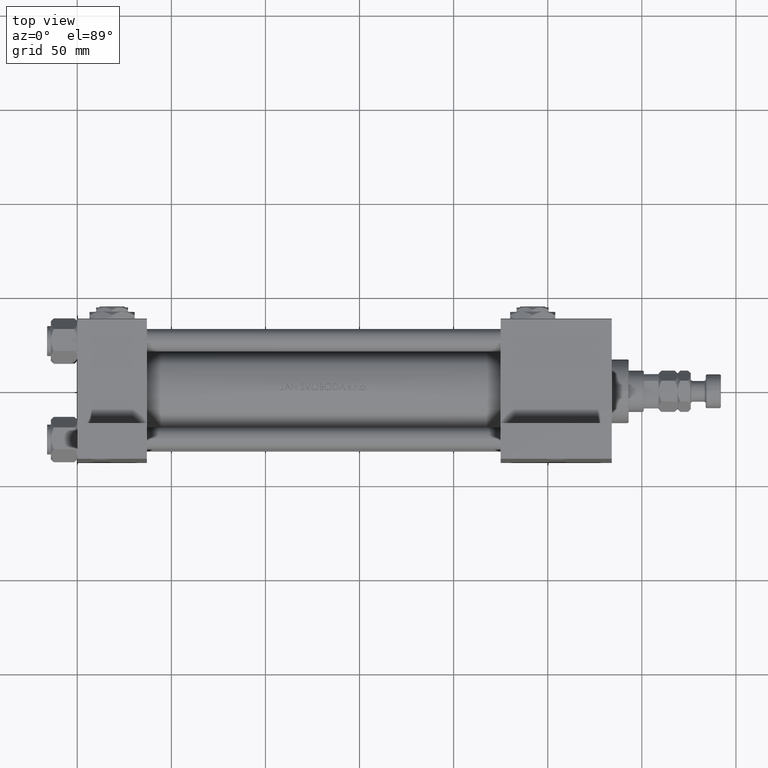
[diagram: clean part render]
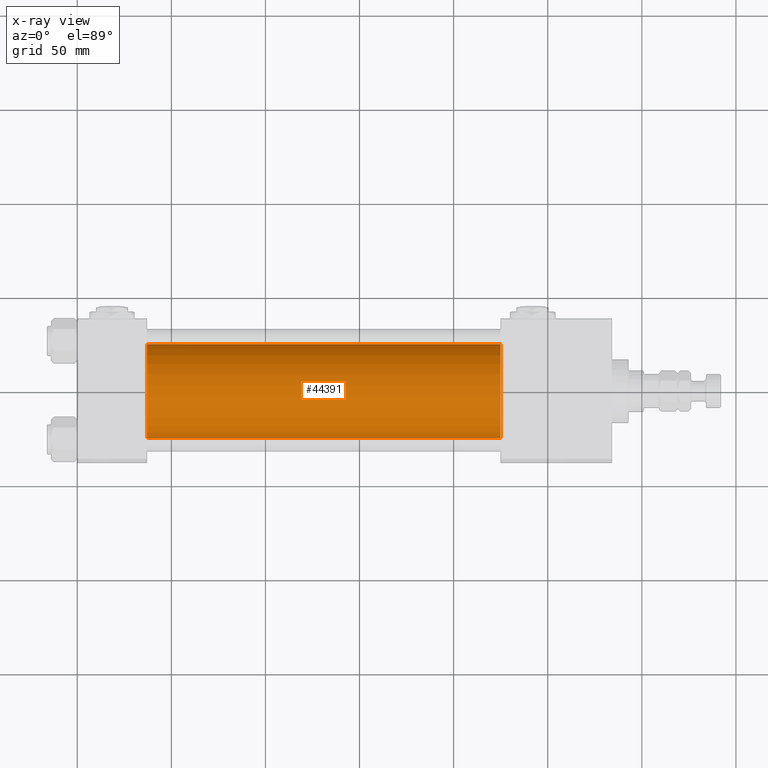
[diagram: x-ray — body ghosted, one internal face saturated and labeled with its STEP entity id]
A machine part, top view, then the same camera in x-ray: the body is ghosted and one INTERNAL B-rep face — a face not visible from any outside direction — is saturated and labeled: STEP entity #44391.
In plain terms, the highlighted cylindrical surface (partial cylindrical patch) has radius 25 mm, axis along (-1, -0, 0).
Its self-contained STEP definition (entity closure, byte-faithful):
#10 = EDGE_LOOP ( 'NONE', ( #4270, #11456, #47924, #41270 ) ) ;
#4270 = ORIENTED_EDGE ( 'NONE', *, *, #45413, .T. ) ;
#5596 = VERTEX_POINT ( 'NONE', #15914 ) ;
#6379 = EDGE_CURVE ( 'NONE', #45620, #30591, #16638, .T. ) ;
#7613 = AXIS2_PLACEMENT_3D ( 'NONE', #38445, #37446, #14880 ) ;
#8001 = VECTOR ( 'NONE', #37217, 1000.000000000000000 ) ;
#9547 = LINE ( 'NONE', #25162, #8001 ) ;
#11020 = CARTESIAN_POINT ( 'NONE',  ( 225.0000000000000000, 0.000000000000000000, 24.50000000000000000 ) ) ;
#11456 = ORIENTED_EDGE ( 'NONE', *, *, #12150, .T. ) ;
#11844 = LINE ( 'NONE', #46196, #30980 ) ;
#12150 = EDGE_CURVE ( 'NONE', #5596, #30591, #9547, .T. ) ;
#14880 = DIRECTION ( 'NONE',  ( 0.000000000000000000, 0.000000000000000000, 1.000000000000000000 ) ) ;
#15914 = CARTESIAN_POINT ( 'NONE',  ( 225.0000000000000000, 3.061616997868383043E-15, -25.50000000000000355 ) ) ;
#16638 = CIRCLE ( 'NONE', #34681, 25.00000000000000000 ) ;
#18210 = FACE_OUTER_BOUND ( 'NONE', #10, .T. ) ;
#18213 = EDGE_CURVE ( 'NONE', #18505, #45620, #11844, .T. ) ;
#18221 = DIRECTION ( 'NONE',  ( 0.000000000000000000, 0.000000000000000000, -1.000000000000000000 ) ) ;
#18505 = VERTEX_POINT ( 'NONE', #11020 ) ;
#22832 = DIRECTION ( 'NONE',  ( 1.000000000000000000, 0.000000000000000000, 0.000000000000000000 ) ) ;
#25162 = CARTESIAN_POINT ( 'NONE',  ( 225.0000000000000000, 3.061616997868383043E-15, -25.50000000000000355 ) ) ;
#27059 = CARTESIAN_POINT ( 'NONE',  ( 37.00000000000000000, 3.061616997868383043E-15, -25.50000000000000355 ) ) ;
#27198 = DIRECTION ( 'NONE',  ( -1.000000000000000000, -0.000000000000000000, -0.000000000000000000 ) ) ;
#27759 = DIRECTION ( 'NONE',  ( 1.000000000000000000, 0.000000000000000000, 0.000000000000000000 ) ) ;
#29757 = CYLINDRICAL_SURFACE ( 'NONE', #7613, 25.00000000000000000 ) ;
#30591 = VERTEX_POINT ( 'NONE', #27059 ) ;
#30980 = VECTOR ( 'NONE', #27198, 1000.000000000000000 ) ;
#34681 = AXIS2_PLACEMENT_3D ( 'NONE', #34780, #27759, #42202 ) ;
#34780 = CARTESIAN_POINT ( 'NONE',  ( 37.00000000000000000, 0.000000000000000000, -0.5000000000000004441 ) ) ;
#36889 = CARTESIAN_POINT ( 'NONE',  ( 37.00000000000000000, 0.000000000000000000, 24.50000000000000000 ) ) ;
#37217 = DIRECTION ( 'NONE',  ( -1.000000000000000000, -0.000000000000000000, -0.000000000000000000 ) ) ;
#37446 = DIRECTION ( 'NONE',  ( -1.000000000000000000, -0.000000000000000000, -0.000000000000000000 ) ) ;
#37709 = CARTESIAN_POINT ( 'NONE',  ( 225.0000000000000000, 0.000000000000000000, -0.5000000000000004441 ) ) ;
#38445 = CARTESIAN_POINT ( 'NONE',  ( 225.0000000000000000, 0.000000000000000000, -0.5000000000000004441 ) ) ;
#38724 = CIRCLE ( 'NONE', #50209, 25.00000000000000000 ) ;
#41270 = ORIENTED_EDGE ( 'NONE', *, *, #18213, .F. ) ;
#42202 = DIRECTION ( 'NONE',  ( 0.000000000000000000, 0.000000000000000000, -1.000000000000000000 ) ) ;
#44391 = ADVANCED_FACE ( 'NONE', ( #18210 ), #29757, .F. ) ;
#45413 = EDGE_CURVE ( 'NONE', #18505, #5596, #38724, .T. ) ;
#45620 = VERTEX_POINT ( 'NONE', #36889 ) ;
#46196 = CARTESIAN_POINT ( 'NONE',  ( 225.0000000000000000, 0.000000000000000000, 24.50000000000000000 ) ) ;
#47924 = ORIENTED_EDGE ( 'NONE', *, *, #6379, .F. ) ;
#50209 = AXIS2_PLACEMENT_3D ( 'NONE', #37709, #22832, #18221 ) ;